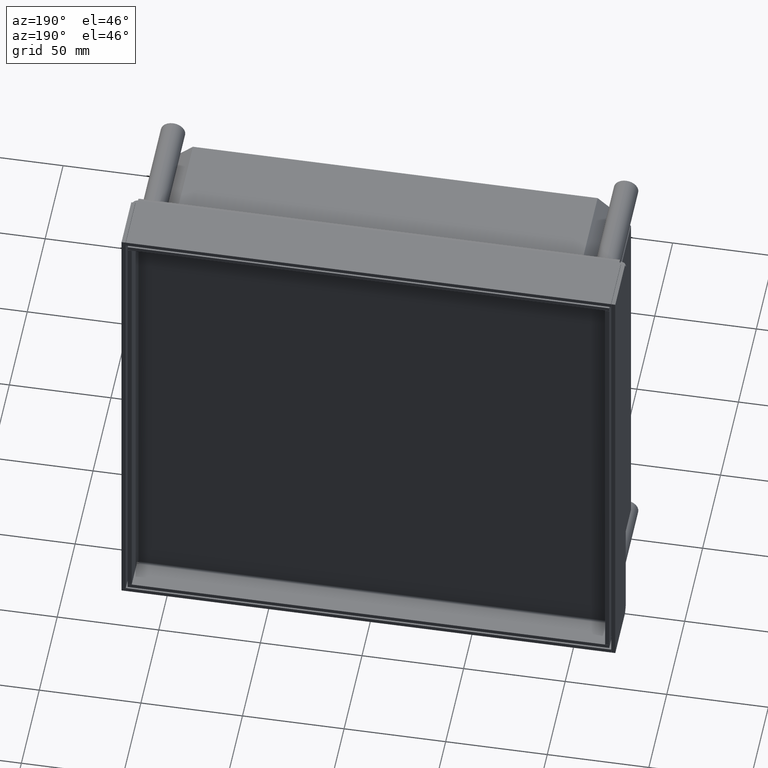
[diagram: clean part render]
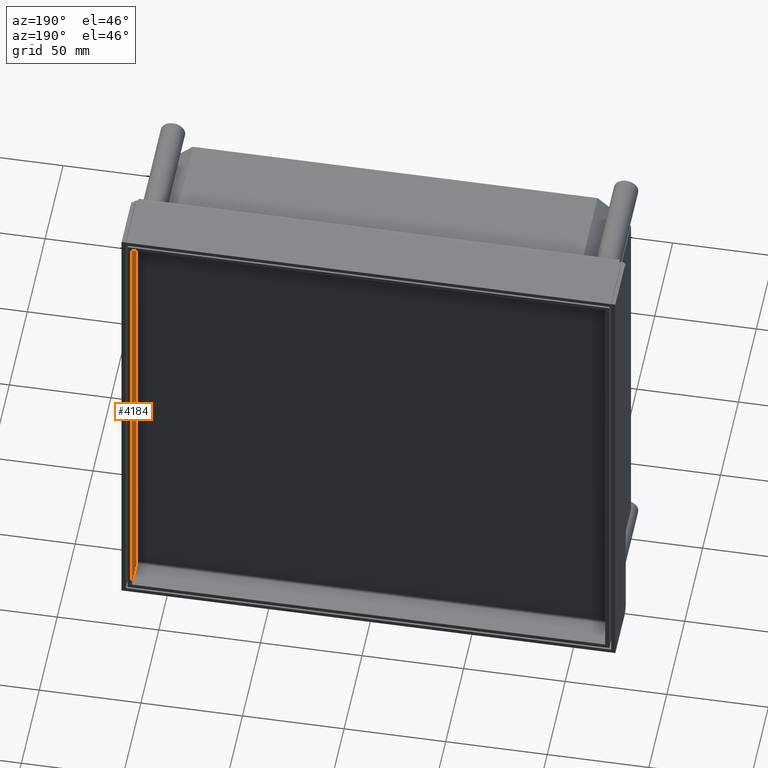
[diagram: same view with one face highlighted and labeled with its STEP entity id]
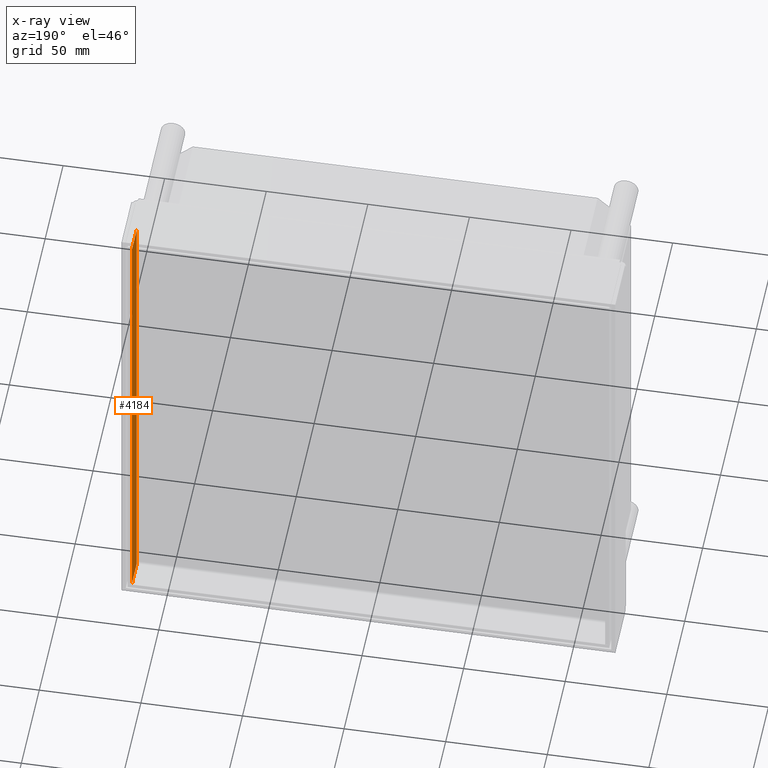
[diagram: x-ray of the same camera — body ghosted, the highlighted face saturated]
A machine part, auxiliary view. The second image highlights one B-rep face of the part: STEP entity #4184.
The next image is the same camera in x-ray: the body ghosted, the highlighted face saturated — about 0% of this face is hidden behind the body in this view.
In plain terms, the highlighted planar face has unit normal (-1, 0, 0).
Its self-contained STEP definition (entity closure, byte-faithful):
#3559=DIRECTION('',(0.E0,0.E0,1.E0));
#3560=VECTOR('',#3559,2.329E2);
#3561=CARTESIAN_POINT('',(1.165E2,1.7E1,-1.1645E2));
#3562=LINE('',#3561,#3560);
#3575=DIRECTION('',(2.991758887411E-14,0.E0,1.E0));
#3576=VECTOR('',#3575,9.5E-1);
#3577=CARTESIAN_POINT('',(1.165E2,3.E0,-1.1645E2));
#3578=LINE('',#3577,#3576);
#3579=DIRECTION('',(0.E0,-1.E0,0.E0));
#3580=VECTOR('',#3579,1.4E1);
#3581=CARTESIAN_POINT('',(1.165E2,1.7E1,-1.1645E2));
#3582=LINE('',#3581,#3580);
#3583=DIRECTION('',(0.E0,-1.E0,0.E0));
#3584=VECTOR('',#3583,1.4E1);
#3585=CARTESIAN_POINT('',(1.165E2,1.7E1,1.1645E2));
#3586=LINE('',#3585,#3584);
#3587=DIRECTION('',(2.991758887411E-14,0.E0,-1.E0));
#3588=VECTOR('',#3587,9.5E-1);
#3589=CARTESIAN_POINT('',(1.165E2,3.E0,1.1645E2));
#3590=LINE('',#3589,#3588);
#3600=DIRECTION('',(0.E0,0.E0,-1.E0));
#3601=VECTOR('',#3600,2.31E2);
#3602=CARTESIAN_POINT('',(1.165E2,3.E0,1.155E2));
#3603=LINE('',#3602,#3601);
#3817=CARTESIAN_POINT('',(1.165E2,3.E0,-1.155E2));
#3819=VERTEX_POINT('',#3817);
#3825=CARTESIAN_POINT('',(1.165E2,1.7E1,-1.1645E2));
#3826=CARTESIAN_POINT('',(1.165E2,3.E0,-1.1645E2));
#3827=VERTEX_POINT('',#3825);
#3828=VERTEX_POINT('',#3826);
#3833=CARTESIAN_POINT('',(1.165E2,3.E0,1.155E2));
#3835=VERTEX_POINT('',#3833);
#3841=CARTESIAN_POINT('',(1.165E2,1.7E1,1.1645E2));
#3842=CARTESIAN_POINT('',(1.165E2,3.E0,1.1645E2));
#3843=VERTEX_POINT('',#3841);
#3844=VERTEX_POINT('',#3842);
#4166=CARTESIAN_POINT('',(1.165E2,0.E0,-8.80572E1));
#4167=DIRECTION('',(-1.E0,0.E0,0.E0));
#4168=DIRECTION('',(0.E0,0.E0,1.E0));
#4169=AXIS2_PLACEMENT_3D('',#4166,#4167,#4168);
#4170=PLANE('',#4169);
#4172=ORIENTED_EDGE('',*,*,#4171,.T.);
#4174=ORIENTED_EDGE('',*,*,#4173,.F.);
#4176=ORIENTED_EDGE('',*,*,#4175,.F.);
#4177=ORIENTED_EDGE('',*,*,#4156,.T.);
#4179=ORIENTED_EDGE('',*,*,#4178,.T.);
#4181=ORIENTED_EDGE('',*,*,#4180,.T.);
#4182=EDGE_LOOP('',(#4172,#4174,#4176,#4177,#4179,#4181));
#4183=FACE_OUTER_BOUND('',#4182,.F.);
#4156=EDGE_CURVE('',#3827,#3843,#3562,.T.);
#4171=EDGE_CURVE('',#3835,#3819,#3603,.T.);
#4173=EDGE_CURVE('',#3828,#3819,#3578,.T.);
#4175=EDGE_CURVE('',#3827,#3828,#3582,.T.);
#4178=EDGE_CURVE('',#3843,#3844,#3586,.T.);
#4180=EDGE_CURVE('',#3844,#3835,#3590,.T.);
#4184=ADVANCED_FACE('',(#4183),#4170,.T.);